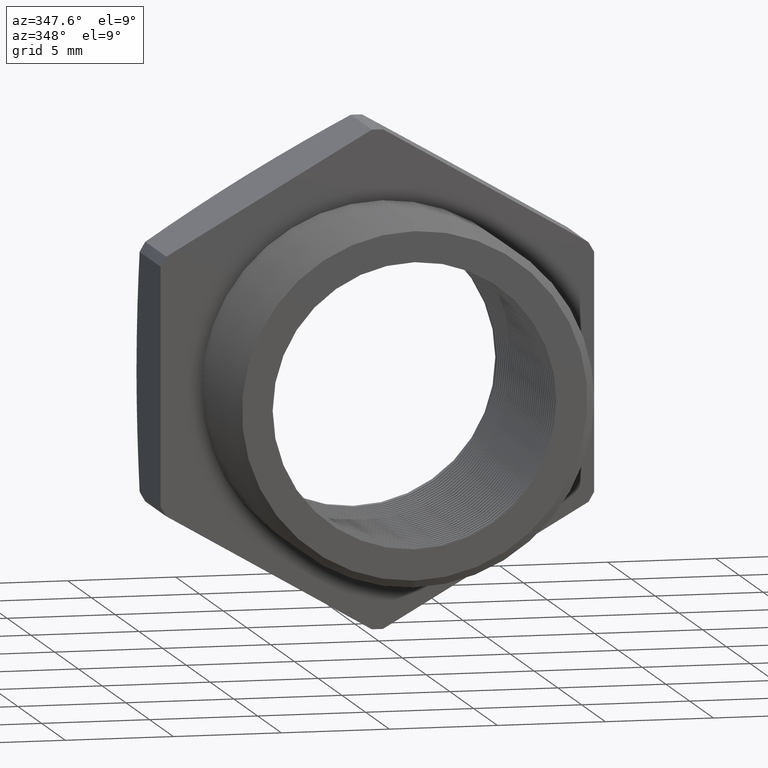
[diagram: clean part render]
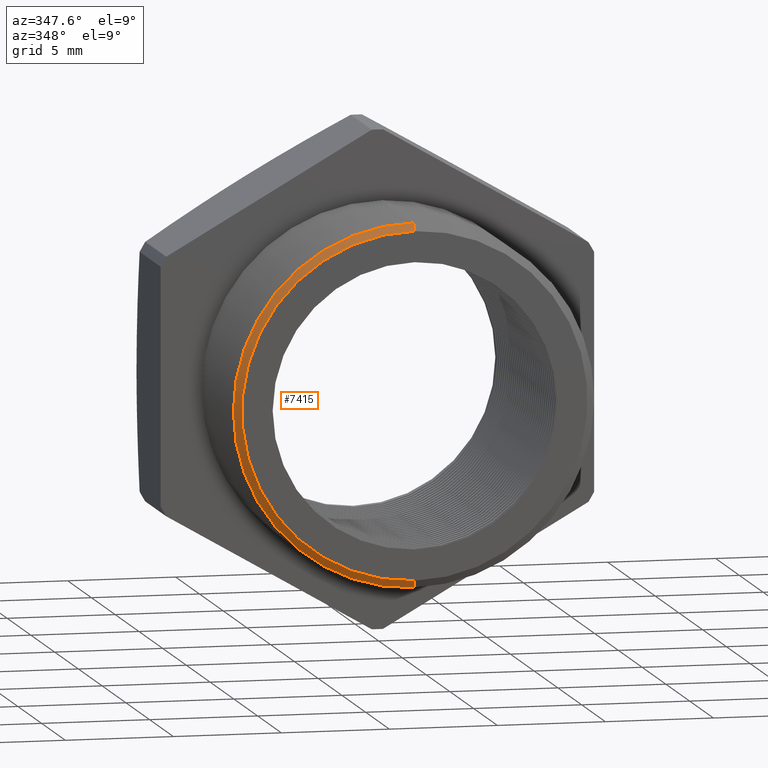
[diagram: same view with one face highlighted and labeled with its STEP entity id]
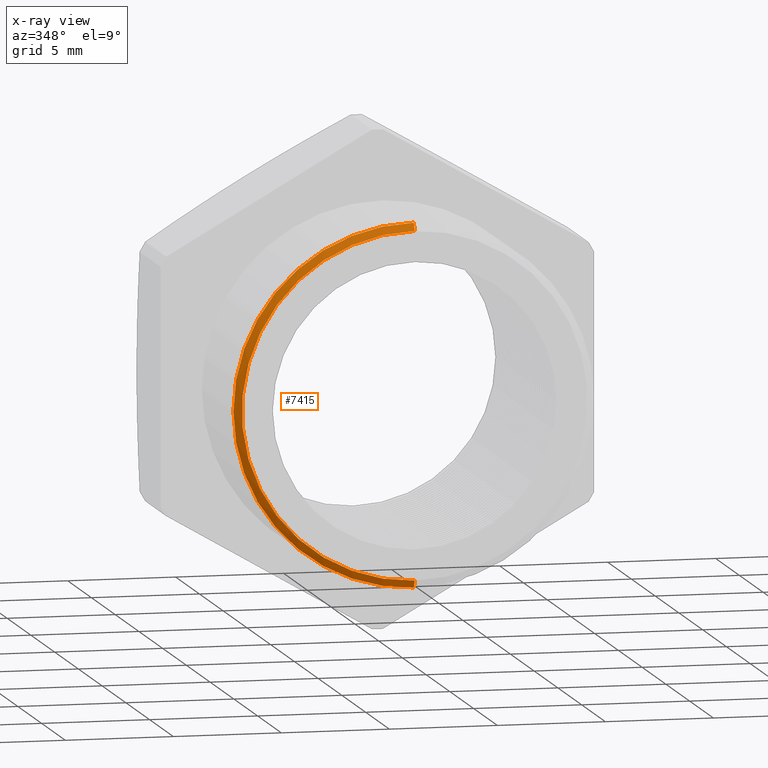
[diagram: x-ray of the same camera — body ghosted, the highlighted face saturated]
A machine part, auxiliary view. The second image highlights one B-rep face of the part: STEP entity #7415.
The next image is the same camera in x-ray: the body ghosted, the highlighted face saturated — about 0% of this face is hidden behind the body in this view.
In plain terms, the highlighted conical surface has half-angle 60 deg.
Its self-contained STEP definition (entity closure, byte-faithful):
#681 = EDGE_CURVE ( 'NONE', #1110, #1137, #2788, .T. ) ;
#1110 = VERTEX_POINT ( 'NONE', #3474 ) ;
#1112 = EDGE_CURVE ( 'NONE', #1110, #1113, #3473, .T. ) ;
#1113 = VERTEX_POINT ( 'NONE', #3469 ) ;
#1116 = VERTEX_POINT ( 'NONE', #3526 ) ;
#1118 = EDGE_CURVE ( 'NONE', #1137, #1116, #3525, .T. ) ;
#1137 = VERTEX_POINT ( 'NONE', #3549 ) ;
#2784 = DIRECTION ( 'NONE',  ( 0.0000000000000000000, 0.0000000000000000000, 1.000000000000000000 ) ) ;
#2785 = DIRECTION ( 'NONE',  ( -0.0000000000000000000, 1.000000000000000000, -0.0000000000000000000 ) ) ;
#2786 = CARTESIAN_POINT ( 'NONE',  ( 0.0000000000000000000, -0.1021974636441129900, 0.0000000000000000000 ) ) ;
#2787 = AXIS2_PLACEMENT_3D ( 'NONE', #2786, #2785, #2784 ) ;
#2788 = CIRCLE ( 'NONE', #2787, 0.3150000000000000000 ) ;
#3469 = CARTESIAN_POINT ( 'NONE',  ( 0.0000000000000000000, -0.09424510941705205300, -0.3287738815610546400 ) ) ;
#3470 = DIRECTION ( 'NONE',  ( 1.060575238724906300E-016, 0.5000000000000008900, -0.8660254037844380400 ) ) ;
#3471 = VECTOR ( 'NONE', #3470, 39.37007874015748100 ) ;
#3472 = CARTESIAN_POINT ( 'NONE',  ( 4.026318816969965600E-017, -0.09424510941705205300, -0.3287738815610546400 ) ) ;
#3473 = LINE ( 'NONE', #3472, #3471 ) ;
#3474 = CARTESIAN_POINT ( 'NONE',  ( 0.0000000000000000000, -0.1021974636441129900, -0.3150000000000000000 ) ) ;
#3522 = DIRECTION ( 'NONE',  ( 0.0000000000000000000, 0.5000000000000008900, 0.8660254037844380400 ) ) ;
#3523 = VECTOR ( 'NONE', #3522, 39.37007874015748100 ) ;
#3524 = CARTESIAN_POINT ( 'NONE',  ( 0.0000000000000000000, -0.09424510941705205300, 0.3287738815610546400 ) ) ;
#3525 = LINE ( 'NONE', #3524, #3523 ) ;
#3526 = CARTESIAN_POINT ( 'NONE',  ( 4.026318816969966200E-017, -0.09424510941705205300, 0.3287738815610546400 ) ) ;
#3549 = CARTESIAN_POINT ( 'NONE',  ( 3.857637417314162700E-017, -0.1021974636441129900, 0.3150000000000000000 ) ) ;
#6225 = DIRECTION ( 'NONE',  ( 0.0000000000000000000, 0.0000000000000000000, 1.000000000000000000 ) ) ;
#6226 = DIRECTION ( 'NONE',  ( -0.0000000000000000000, 1.000000000000000000, -0.0000000000000000000 ) ) ;
#6227 = CARTESIAN_POINT ( 'NONE',  ( 0.0000000000000000000, -0.09424510941705205300, 0.0000000000000000000 ) ) ;
#6228 = AXIS2_PLACEMENT_3D ( 'NONE', #6227, #6226, #6225 ) ;
#6229 = CONICAL_SURFACE ( 'NONE', #6228, 0.3287738815610546400, 1.047197551196596700 ) ;
#6230 = FACE_OUTER_BOUND ( 'NONE', #7412, .T. ) ;
#6231 = DIRECTION ( 'NONE',  ( 0.0000000000000000000, 0.0000000000000000000, 1.000000000000000000 ) ) ;
#6232 = DIRECTION ( 'NONE',  ( -0.0000000000000000000, 1.000000000000000000, -0.0000000000000000000 ) ) ;
#6233 = CARTESIAN_POINT ( 'NONE',  ( 0.0000000000000000000, -0.09424510941705205300, 0.0000000000000000000 ) ) ;
#6234 = AXIS2_PLACEMENT_3D ( 'NONE', #6233, #6232, #6231 ) ;
#6235 = CIRCLE ( 'NONE', #6234, 0.3287738815610546400 ) ;
#7396 = ORIENTED_EDGE ( 'NONE', *, *, #681, .T. ) ;
#7403 = ORIENTED_EDGE ( 'NONE', *, *, #1112, .F. ) ;
#7404 = ORIENTED_EDGE ( 'NONE', *, *, #7414, .F. ) ;
#7406 = ORIENTED_EDGE ( 'NONE', *, *, #1118, .T. ) ;
#7412 = EDGE_LOOP ( 'NONE', ( #7403, #7396, #7406, #7404 ) ) ;
#7414 = EDGE_CURVE ( 'NONE', #1113, #1116, #6235, .T. ) ;
#7415 = ADVANCED_FACE ( 'NONE', ( #6230 ), #6229, .T. ) ;